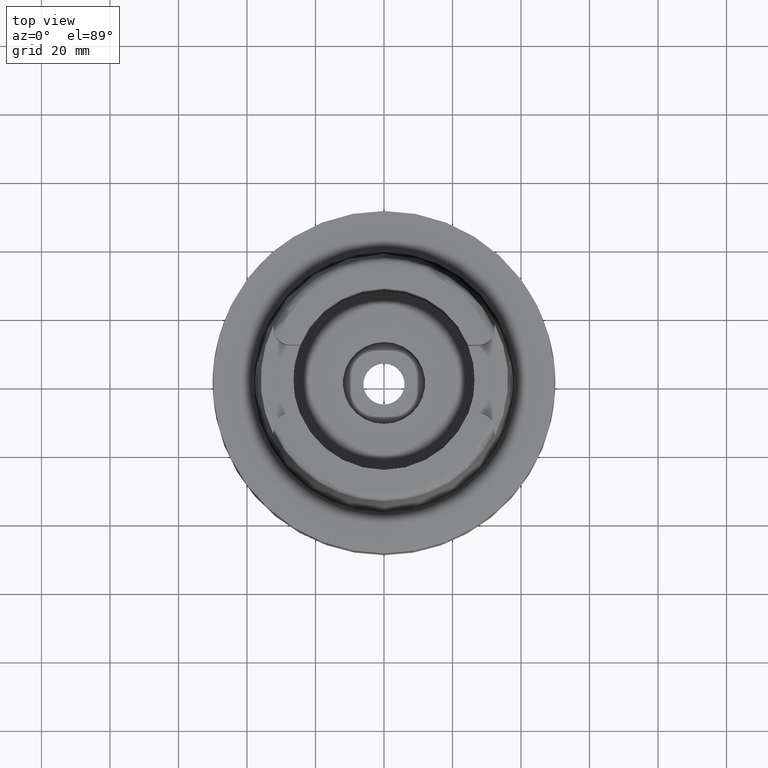
[diagram: clean part render]
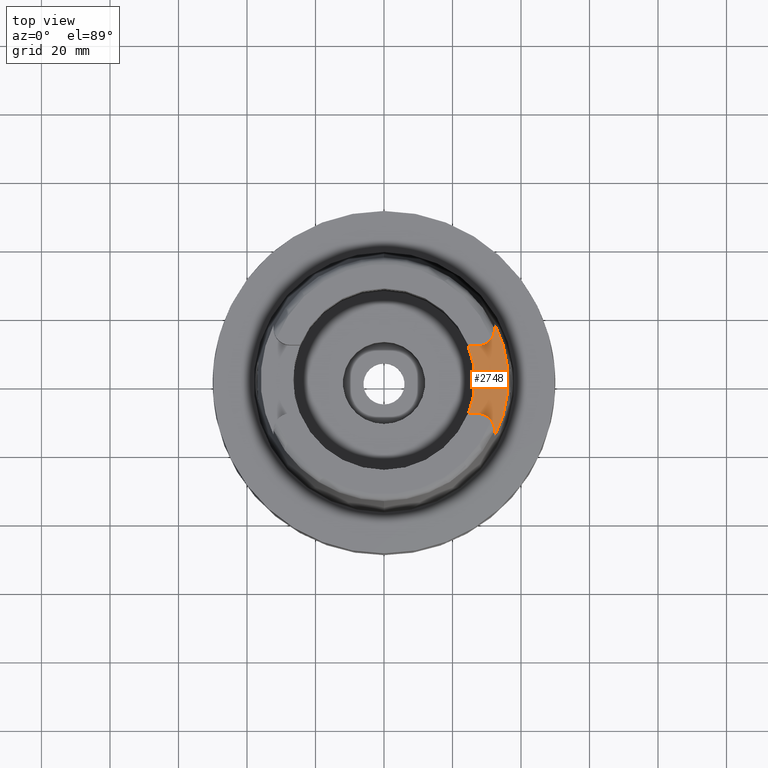
[diagram: same view with one face highlighted and labeled with its STEP entity id]
A machine part, top view. The second image highlights one B-rep face of the part: STEP entity #2748.
In plain terms, the highlighted planar face has unit normal (0, 0, 1).
Its self-contained STEP definition (entity closure, byte-faithful):
#423=CARTESIAN_POINT('',(0.E0,0.E0,3.5E1));
#424=DIRECTION('',(0.E0,0.E0,1.E0));
#425=DIRECTION('',(9.259134021805E-1,-3.777358490566E-1,0.E0));
#426=AXIS2_PLACEMENT_3D('',#423,#424,#425);
#431=DIRECTION('',(1.E0,-1.416925057437E-13,0.E0));
#432=VECTOR('',#431,2.833294842218E0);
#433=CARTESIAN_POINT('',(2.453670515778E1,1.001E1,3.5E1));
#434=LINE('',#433,#432);
#438=CARTESIAN_POINT('',(2.737E1,1.489E1,3.5E1));
#439=DIRECTION('',(0.E0,0.E0,1.E0));
#440=DIRECTION('',(0.E0,-1.E0,0.E0));
#441=AXIS2_PLACEMENT_3D('',#438,#439,#440);
#446=DIRECTION('',(-2.841526755966E-6,9.999999999960E-1,2.136488158936E-14));
#447=VECTOR('',#446,1.662875436001E0);
#448=CARTESIAN_POINT('',(3.225E1,1.489E1,3.5E1));
#449=LINE('',#448,#447);
#453=CARTESIAN_POINT('',(0.E0,0.E0,3.5E1));
#454=DIRECTION('',(0.E0,0.E0,-1.E0));
#455=DIRECTION('',(8.896561898443E-1,4.566309931135E-1,0.E0));
#456=AXIS2_PLACEMENT_3D('',#453,#454,#455);
#461=DIRECTION('',(-1.280556612681E-5,9.999999999180E-1,-2.136635785692E-14));
#462=VECTOR('',#461,1.662760542808E0);
#463=CARTESIAN_POINT('',(3.225002129259E1,-1.655276054267E1,3.5E1));
#464=LINE('',#463,#462);
#468=CARTESIAN_POINT('',(2.737E1,-1.489E1,3.5E1));
#469=DIRECTION('',(0.E0,0.E0,1.E0));
#470=DIRECTION('',(1.E0,0.E0,0.E0));
#471=AXIS2_PLACEMENT_3D('',#468,#469,#470);
#476=DIRECTION('',(-1.E0,-1.460812116738E-13,0.E0));
#477=VECTOR('',#476,2.833294842218E0);
#478=CARTESIAN_POINT('',(2.737E1,-1.001E1,3.5E1));
#479=LINE('',#478,#477);
#2246=CARTESIAN_POINT('',(3.225E1,1.655285457013E1,3.5E1));
#2247=CARTESIAN_POINT('',(3.225E1,-1.655285457013E1,3.5E1));
#2248=VERTEX_POINT('',#2246);
#2249=VERTEX_POINT('',#2247);
#2252=CARTESIAN_POINT('',(2.453670515778E1,-1.001E1,3.5E1));
#2253=CARTESIAN_POINT('',(2.453670515778E1,1.001E1,3.5E1));
#2254=VERTEX_POINT('',#2252);
#2255=VERTEX_POINT('',#2253);
#2256=CARTESIAN_POINT('',(2.737E1,1.001E1,3.5E1));
#2257=VERTEX_POINT('',#2256);
#2258=CARTESIAN_POINT('',(3.225E1,1.489E1,3.5E1));
#2259=VERTEX_POINT('',#2258);
#2260=CARTESIAN_POINT('',(3.225E1,-1.489E1,3.5E1));
#2261=VERTEX_POINT('',#2260);
#2262=CARTESIAN_POINT('',(2.737E1,-1.001E1,3.5E1));
#2263=VERTEX_POINT('',#2262);
#2726=CARTESIAN_POINT('',(0.E0,0.E0,3.5E1));
#2727=DIRECTION('',(0.E0,0.E0,1.E0));
#2728=DIRECTION('',(1.E0,0.E0,0.E0));
#2729=AXIS2_PLACEMENT_3D('',#2726,#2727,#2728);
#2730=PLANE('',#2729);
#2732=ORIENTED_EDGE('',*,*,#2731,.T.);
#2734=ORIENTED_EDGE('',*,*,#2733,.T.);
#2736=ORIENTED_EDGE('',*,*,#2735,.T.);
#2738=ORIENTED_EDGE('',*,*,#2737,.T.);
#2739=ORIENTED_EDGE('',*,*,#2704,.T.);
#2741=ORIENTED_EDGE('',*,*,#2740,.T.);
#2743=ORIENTED_EDGE('',*,*,#2742,.T.);
#2745=ORIENTED_EDGE('',*,*,#2744,.T.);
#2746=EDGE_LOOP('',(#2732,#2734,#2736,#2738,#2739,#2741,#2743,#2745));
#2747=FACE_OUTER_BOUND('',#2746,.F.);
#427=CIRCLE('',#426,2.65E1);
#442=CIRCLE('',#441,4.88E0);
#457=CIRCLE('',#456,3.624995854370E1);
#472=CIRCLE('',#471,4.88E0);
#2704=EDGE_CURVE('',#2248,#2249,#457,.T.);
#2731=EDGE_CURVE('',#2254,#2255,#427,.T.);
#2733=EDGE_CURVE('',#2255,#2257,#434,.T.);
#2735=EDGE_CURVE('',#2257,#2259,#442,.T.);
#2737=EDGE_CURVE('',#2259,#2248,#449,.T.);
#2740=EDGE_CURVE('',#2249,#2261,#464,.T.);
#2742=EDGE_CURVE('',#2261,#2263,#472,.T.);
#2744=EDGE_CURVE('',#2263,#2254,#479,.T.);
#2748=ADVANCED_FACE('',(#2747),#2730,.T.);